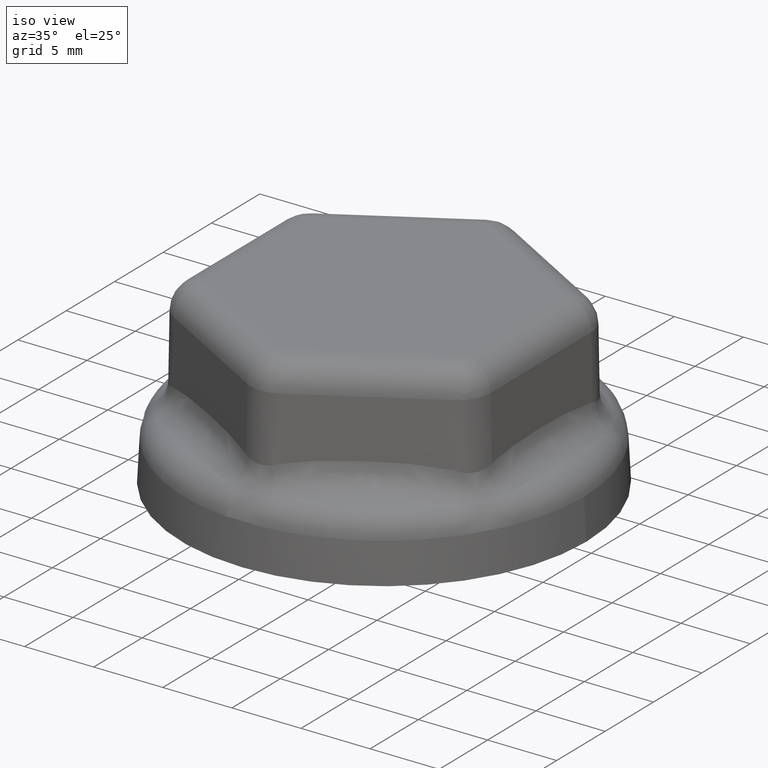
[diagram: clean part render]
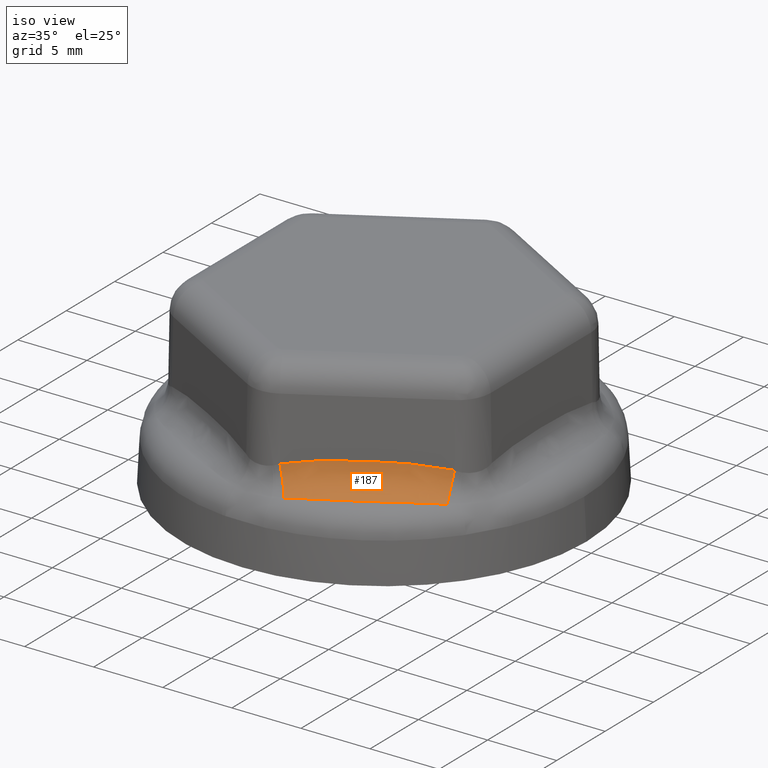
[diagram: same view with one face highlighted and labeled with its STEP entity id]
A machine part, iso view. The second image highlights one B-rep face of the part: STEP entity #187.
In plain terms, the highlighted face is a freeform B-spline surface patch.
Its self-contained STEP definition (entity closure, byte-faithful):
#187 = ADVANCED_FACE( '', ( #434 ), #435, .F. );
#434 = FACE_OUTER_BOUND( '', #4461, .T. );
#435 = ( B_SPLINE_SURFACE( 3, 2, ( ( #4463, #4464, #4465 ), ( #4466, #4467, #4468 ), ( #4469, #4470, #4471 ), ( #4472, #4473, #4474 ), ( #4475, #4476, #4477 ), ( #4478, #4479, #4480 ), ( #4481, #4482, #4483 ), ( #4484, #4485, #4486 ), ( #4487, #4488, #4489 ), ( #4490, #4491, #4492 ), ( #4493, #4494, #4495 ), ( #4496, #4497, #4498 ), ( #4499, #4500, #4501 ), ( #4502, #4503, #4504 ), ( #4505, #4506, #4507 ), ( #4508, #4509, #4510 ), ( #4511, #4512, #4513 ), ( #4514, #4515, #4516 ), ( #4517, #4518, #4519 ), ( #4520, #4521, #4522 ), ( #4523, #4524, #4525 ), ( #4526, #4527, #4528 ), ( #4529, #4530, #4531 ), ( #4532, #4533, #4534 ), ( #4535, #4536, #4537 ), ( #4538, #4539, #4540 ), ( #4541, #4542, #4543 ), ( #4544, #4545, #4546 ), ( #4547, #4548, #4549 ), ( #4550, #4551, #4552 ), ( #4553, #4554, #4555 ), ( #4556, #4557, #4558 ), ( #4559, #4560, #4561 ), ( #4562, #4563, #4564 ), ( #4565, #4566, #4567 ), ( #4568, #4569, #4570 ) ), .UNSPECIFIED., .F., .F., .F. )B_SPLINE_SURFACE_WITH_KNOTS( ( 4, 2, 2, 2, 2, 2, 2, 2, 2, 2, 2, 2, 2, 2, 2, 2, 2, 4 ), ( 3, 3 ), ( 0.000643969489730009, 0.00129502072126301, 0.00194607195279602, 0.00259712318432902, 0.00324817441586203, 0.00389922564739503, 0.00455027687892804, 0.00520132811046104, 0.00585237934199405, 0.00617790495776055, 0.00650343057352705, 0.00715448180506006, 0.00780553303659306, 0.00845658426812607, 0.00910763549965907, 0.00975868673119207, 0.0104097379627251, 0.0110607891942581 ), ( 0.000000000000000, 1.00000000000000 ), .UNSPECIFIED. )RATIONAL_B_SPLINE_SURFACE( ( ( 1.00000000000000, 0.854673566511432, 1.00000000000000 ), ( 1.00000000000000, 0.850109202207065, 1.00000000000000 ), ( 1.00000000000000, 0.845668594856366, 1.00000000000000 ), ( 1.00000000000000, 0.837123622484433, 1.00000000000000 ), ( 1.00000000000000, 0.833019301905955, 1.00000000000000 ), ( 1.00000000000000, 0.825237608346722, 1.00000000000000 ), ( 1.00000000000000, 0.821560373713319, 1.00000000000000 ), ( 1.00000000000000, 0.814722343547653, 1.00000000000000 ), ( 1.00000000000000, 0.811561710087577, 1.00000000000000 ), ( 1.00000000000000, 0.805840478755588, 1.00000000000000 ), ( 1.00000000000000, 0.803280049331529, 1.00000000000000 ), ( 1.00000000000000, 0.798831890886836, 1.00000000000000 ), ( 1.00000000000000, 0.796944315189482, 1.00000000000000 ), ( 1.00000000000000, 0.793898678950325, 1.00000000000000 ), ( 1.00000000000000, 0.792740734359891, 1.00000000000000 ), ( 1.00000000000000, 0.791191196619409, 1.00000000000000 ), ( 1.00000000000000, 0.790799663818531, 1.00000000000000 ), ( 1.00000000000000, 0.790797737678276, 1.00000000000000 ), ( 1.00000000000000, 0.790894475057813, 1.00000000000000 ), ( 1.00000000000000, 0.791282261041673, 1.00000000000000 ), ( 1.00000000000000, 0.791573374682062, 1.00000000000000 ), ( 1.00000000000000, 0.792734285196661, 1.00000000000000 ), ( 1.00000000000000, 0.793892384001266, 1.00000000000000 ), ( 1.00000000000000, 0.796939754686649, 1.00000000000000 ), ( 1.00000000000000, 0.798828910142380, 1.00000000000000 ), ( 1.00000000000000, 0.803280956249931, 1.00000000000000 ), ( 1.00000000000000, 0.805843692375025, 1.00000000000000 ), ( 1.00000000000000, 0.811569434155737, 1.00000000000000 ), ( 1.00000000000000, 0.814732269774553, 1.00000000000000 ), ( 1.00000000000000, 0.821573680413341, 1.00000000000000 ), ( 1.00000000000000, 0.825252091842024, 1.00000000000000 ), ( 1.00000000000000, 0.833034152979602, 1.00000000000000 ), ( 1.00000000000000, 0.837137663365863, 1.00000000000000 ), ( 1.00000000000000, 0.845678065220593, 1.00000000000000 ), ( 1.00000000000000, 0.850114912409576, 1.00000000000000 ), ( 1.00000000000000, 0.854673566222406, 1.00000000000000 ) ) )BOUNDED_SURFACE(  )REPRESENTATION_ITEM( '' )GEOMETRIC_REPRESENTATION_ITEM(  )SURFACE(  ) );
#4461 = EDGE_LOOP( '', ( #5787, #5788, #5789, #5790 ) );
#4463 = CARTESIAN_POINT( '', ( 1.21959955251752, -12.5048011958262, 6.27891681477302 ) );
#4464 = CARTESIAN_POINT( '', ( 1.43429685658261, -12.4048624231615, 5.08733510668828 ) );
#4465 = CARTESIAN_POINT( '', ( 2.07224219008962, -13.2923450870443, 4.55691081382379 ) );
#4466 = CARTESIAN_POINT( '', ( 1.40478599335718, -12.3970290552777, 6.32132233537126 ) );
#4467 = CARTESIAN_POINT( '', ( 1.60625488047751, -12.3052842686722, 5.10212734630727 ) );
#4468 = CARTESIAN_POINT( '', ( 2.25035353519425, -13.2251270710455, 4.57811351678076 ) );
#4469 = CARTESIAN_POINT( '', ( 1.59041785769208, -12.2891116679070, 6.35817506598446 ) );
#4470 = CARTESIAN_POINT( '', ( 1.77927434663386, -12.2051754518254, 5.11284317315828 ) );
#4471 = CARTESIAN_POINT( '', ( 2.43000162735888, -13.1558098792363, 4.59653993969207 ) );
#4472 = CARTESIAN_POINT( '', ( 1.96238869723078, -12.0730474252385, 6.42301030066587 ) );
#4473 = CARTESIAN_POINT( '', ( 2.12735094225277, -12.0039022451070, 5.12827779402936 ) );
#4474 = CARTESIAN_POINT( '', ( 2.79180747055718, -13.0126935696534, 4.62895755650767 ) );
#4475 = CARTESIAN_POINT( '', ( 2.14872893833966, -11.9648999435356, 6.45098762172710 ) );
#4476 = CARTESIAN_POINT( '', ( 2.30240951248457, -11.9027370929799, 5.13299313621681 ) );
#4477 = CARTESIAN_POINT( '', ( 2.97396668695492, -12.9388933556279, 4.64294621752139 ) );
#4478 = CARTESIAN_POINT( '', ( 2.52197740141186, -11.7484203168258, 6.49983445213763 ) );
#4479 = CARTESIAN_POINT( '', ( 2.65446684122182, -11.6993702934865, 5.13827242217248 ) );
#4480 = CARTESIAN_POINT( '', ( 3.34019070205655, -12.7865718783551, 4.66736963228555 ) );
#4481 = CARTESIAN_POINT( '', ( 2.70888584277450, -11.6400881004873, 6.52070121588426 ) );
#4482 = CARTESIAN_POINT( '', ( 2.83146635333247, -11.5971682346054, 5.13883519605766 ) );
#4483 = CARTESIAN_POINT( '', ( 3.52425532790011, -12.7080500635833, 4.67780301456413 ) );
#4484 = CARTESIAN_POINT( '', ( 3.08315706631271, -11.4232759514307, 6.55674904301244 ) );
#4485 = CARTESIAN_POINT( '', ( 3.18726266850002, -11.3917775886783, 5.13742354211282 ) );
#4486 = CARTESIAN_POINT( '', ( 3.89363210937466, -12.5461144219176, 4.69582692775879 ) );
#4487 = CARTESIAN_POINT( '', ( 3.27051995294170, -11.3147959847524, 6.57192879924393 ) );
#4488 = CARTESIAN_POINT( '', ( 3.36605993425422, -11.2885887295554, 5.13544935928786 ) );
#4489 = CARTESIAN_POINT( '', ( 4.07894382644561, -12.4627001418864, 4.70341680620970 ) );
#4490 = CARTESIAN_POINT( '', ( 3.64560905903995, -11.0977179237473, 6.59774150102254 ) );
#4491 = CARTESIAN_POINT( '', ( 3.72524583282945, -11.0813152876247, 5.13035725303384 ) );
#4492 = CARTESIAN_POINT( '', ( 4.45011485942759, -12.2908910582021, 4.71632315679810 ) );
#4493 = CARTESIAN_POINT( '', ( 3.83333531909183, -10.9891198162263, 6.60837393871089 ) );
#4494 = CARTESIAN_POINT( '', ( 3.90563454350859, -10.9772306383322, 5.12724039791064 ) );
#4495 = CARTESIAN_POINT( '', ( 4.63597353691948, -12.2024959451512, 4.72163937590803 ) );
#4496 = CARTESIAN_POINT( '', ( 4.20908080274220, -10.7718283521701, 6.62597261704593 ) );
#4497 = CARTESIAN_POINT( '', ( 4.26772591701862, -10.7683025881345, 5.12101368256861 ) );
#4498 = CARTESIAN_POINT( '', ( 5.00751314707338, -12.0207307634964, 4.73043871484495 ) );
#4499 = CARTESIAN_POINT( '', ( 4.39710003340376, -10.6631349933386, 6.63293876930206 ) );
#4500 = CARTESIAN_POINT( '', ( 4.44942820151963, -10.6634593775505, 5.11790521689839 ) );
#4501 = CARTESIAN_POINT( '', ( 5.19319331072996, -11.9273605670193, 4.73392179116627 ) );
#4502 = CARTESIAN_POINT( '', ( 4.77338112426945, -10.4456693913741, 6.64383476530698 ) );
#4503 = CARTESIAN_POINT( '', ( 4.81380212334838, -10.4531956427764, 5.11256435414336 ) );
#4504 = CARTESIAN_POINT( '', ( 5.56364658092053, -11.7357515668498, 4.73936978901282 ) );
#4505 = CARTESIAN_POINT( '', ( 4.96164297698363, -10.3368971506764, 6.64776470277696 ) );
#4506 = CARTESIAN_POINT( '', ( 4.99647293545686, -10.3477755694529, 5.11033322597860 ) );
#4507 = CARTESIAN_POINT( '', ( 5.74841886377126, -11.6375128384553, 4.74133475786428 ) );
#4508 = CARTESIAN_POINT( '', ( 5.33837908943277, -10.1192836109984, 6.65296647913298 ) );
#4509 = CARTESIAN_POINT( '', ( 5.36239034578293, -10.1365743366022, 5.10729272147480 ) );
#4510 = CARTESIAN_POINT( '', ( 6.11634733718216, -11.4363747541593, 4.74393564596526 ) );
#4511 = CARTESIAN_POINT( '', ( 5.52685333821303, -10.0104423155798, 6.65423845510127 ) );
#4512 = CARTESIAN_POINT( '', ( 5.54563579132433, -10.0307938268459, 5.10648412542013 ) );
#4513 = CARTESIAN_POINT( '', ( 6.29950272671368, -11.3334756771077, 4.74457163398540 ) );
#4514 = CARTESIAN_POINT( '', ( 5.80971667008841, -9.84713096727180, 6.65424478125112 ) );
#4515 = CARTESIAN_POINT( '', ( 5.82062660110518, -9.87202788765456, 5.10648021280580 ) );
#4516 = CARTESIAN_POINT( '', ( 6.57252571434549, -11.1758597907089, 4.74457479706411 ) );
#4517 = CARTESIAN_POINT( '', ( 5.90402993452657, -9.79268556472667, 6.65392793936312 ) );
#4518 = CARTESIAN_POINT( '', ( 5.91231061286167, -9.81909012127695, 5.10667755520855 ) );
#4519 = CARTESIAN_POINT( '', ( 6.66324878918585, -11.1227773408860, 4.74441637610715 ) );
#4520 = CARTESIAN_POINT( '', ( 6.09270815736735, -9.68377795277016, 6.65264734827740 ) );
#4521 = CARTESIAN_POINT( '', ( 6.09566943199994, -9.71321211461552, 5.10745864090077 ) );
#4522 = CARTESIAN_POINT( '', ( 6.84404901737512, -11.0155709067773, 4.74377608058768 ) );
#4523 = CARTESIAN_POINT( '', ( 6.18708052119514, -9.62931147233861, 6.65168337561312 ) );
#4524 = CARTESIAN_POINT( '', ( 6.18735137102978, -9.66026775451248, 5.10804250132340 ) );
#4525 = CARTESIAN_POINT( '', ( 6.93413304697189, -10.9614424746983, 4.74329409422486 ) );
#4526 = CARTESIAN_POINT( '', ( 6.47007521393296, -9.46600295079181, 6.64778662385732 ) );
#4527 = CARTESIAN_POINT( '', ( 6.46211481999737, -9.50158708273839, 5.11032082925851 ) );
#4528 = CARTESIAN_POINT( '', ( 7.20311633335517, -10.7976898703471, 4.74134571840390 ) );
#4529 = CARTESIAN_POINT( '', ( 6.65863888651527, -9.35721487180628, 6.64385674670947 ) );
#4530 = CARTESIAN_POINT( '', ( 6.64497404187928, -9.39596827540235, 5.11255280776315 ) );
#4531 = CARTESIAN_POINT( '', ( 7.38080536134764, -10.6866604187481, 4.73938077971457 ) );
#4532 = CARTESIAN_POINT( '', ( 7.03553915017977, -9.13983111935138, 6.63295562218747 ) );
#4533 = CARTESIAN_POINT( '', ( 7.00967172056332, -9.18530224363645, 5.11789772522692 ) );
#4534 = CARTESIAN_POINT( '', ( 7.73237891737210, -10.4613944946527, 4.73393021760848 ) );
#4535 = CARTESIAN_POINT( '', ( 7.22387573192391, -9.03123545379417, 6.62598424974388 ) );
#4536 = CARTESIAN_POINT( '', ( 7.19150936481211, -9.08025551459372, 5.12100936139240 ) );
#4537 = CARTESIAN_POINT( '', ( 7.90626295357781, -10.3471587042231, 4.73044453119469 ) );
#4538 = CARTESIAN_POINT( '', ( 7.60027480354750, -8.81427635994529, 6.60837051081597 ) );
#4539 = CARTESIAN_POINT( '', ( 7.55382582980510, -8.87094638855173, 5.12724181599020 ) );
#4540 = CARTESIAN_POINT( '', ( 8.24976339244216, -10.1160667430644, 4.72163766195980 ) );
#4541 = CARTESIAN_POINT( '', ( 7.78833729687084, -8.70591292873585, 6.59772819044588 ) );
#4542 = CARTESIAN_POINT( '', ( 7.73430429280321, -8.76668422712578, 5.13036119421279 ) );
#4543 = CARTESIAN_POINT( '', ( 8.41937950962273, -9.99921131170584, 4.71631650151083 ) );
#4544 = CARTESIAN_POINT( '', ( 8.16412250237361, -8.48947396192411, 6.57189275956010 ) );
#4545 = CARTESIAN_POINT( '', ( 8.09363444649737, -8.55912219556418, 5.13545515098812 ) );
#4546 = CARTESIAN_POINT( '', ( 8.75396916495173, -9.76351551150078, 4.70339878636677 ) );
#4547 = CARTESIAN_POINT( '', ( 8.35184524806800, -8.38139839792477, 6.55670009791587 ) );
#4548 = CARTESIAN_POINT( '', ( 8.27248623781174, -8.45582229004457, 5.13742860291083 ) );
#4549 = CARTESIAN_POINT( '', ( 8.91894264633352, -9.64467585986296, 4.69580245521203 ) );
#4550 = CARTESIAN_POINT( '', ( 8.72686611652991, -8.16560705173716, 6.52062767319359 ) );
#4551 = CARTESIAN_POINT( '', ( 8.62836900211855, -8.25032493540122, 5.13883492126202 ) );
#4552 = CARTESIAN_POINT( '', ( 9.24396549748016, -9.40567364796448, 4.67776624321727 ) );
#4553 = CARTESIAN_POINT( '', ( 8.91416433044063, -8.05789119232368, 6.49974913081535 ) );
#4554 = CARTESIAN_POINT( '', ( 8.80540045605872, -8.14812721507520, 5.13826746654624 ) );
#4555 = CARTESIAN_POINT( '', ( 9.40401504420428, -9.28551169990986, 4.66732697162675 ) );
#4556 = CARTESIAN_POINT( '', ( 9.28823039886403, -7.84290884552238, 6.45088878454462 ) );
#4557 = CARTESIAN_POINT( '', ( 9.15751334048372, -7.94494135416749, 5.13297817218631 ) );
#4558 = CARTESIAN_POINT( '', ( 9.71900012364259, -9.04453318895579, 4.64289679892780 ) );
#4559 = CARTESIAN_POINT( '', ( 9.47499844812725, -7.73564219312304, 6.42290958900036 ) );
#4560 = CARTESIAN_POINT( '', ( 9.33259553135818, -7.84395275320888, 5.12825739258215 ) );
#4561 = CARTESIAN_POINT( '', ( 9.87393606413137, -8.92371704865471, 4.62890720067852 ) );
#4562 = CARTESIAN_POINT( '', ( 9.84787348255104, -7.52166900607860, 6.35809736931802 ) );
#4563 = CARTESIAN_POINT( '', ( 9.68072653646447, -7.64327034807092, 5.11282109302081 ) );
#4564 = CARTESIAN_POINT( '', ( 10.1785868824492, -8.68208879547599, 4.59650109135524 ) );
#4565 = CARTESIAN_POINT( '', ( 10.0339815649794, -7.41496173776605, 6.32126931455613 ) );
#4566 = CARTESIAN_POINT( '', ( 9.85377669243993, -7.54357570321695, 5.10210884855019 ) );
#4567 = CARTESIAN_POINT( '', ( 10.3283034301386, -8.56127598199606, 4.57808699876996 ) );
#4568 = CARTESIAN_POINT( '', ( 10.2196757168275, -7.30860479958056, 6.27891681745821 ) );
#4569 = CARTESIAN_POINT( '', ( 10.0257775497125, -7.44456873222661, 5.08733510762495 ) );
#4570 = CARTESIAN_POINT( '', ( 10.4753874168795, -8.44078693057284, 4.55691081516639 ) );
#5787 = ORIENTED_EDGE( '', *, *, #6186, .T. );
#5788 = ORIENTED_EDGE( '', *, *, #6184, .F. );
#5789 = ORIENTED_EDGE( '', *, *, #6187, .T. );
#5790 = ORIENTED_EDGE( '', *, *, #6188, .F. );
#6184 = EDGE_CURVE( '', #6633, #6522, #6672, .T. );
#6186 = EDGE_CURVE( '', #6674, #6522, #6675, .T. );
#6187 = EDGE_CURVE( '', #6633, #6676, #6677, .T. );
#6188 = EDGE_CURVE( '', #6674, #6676, #6678, .T. );
#6522 = VERTEX_POINT( '', #8097 );
#6633 = VERTEX_POINT( '', #8590 );
#6672 = B_SPLINE_CURVE_WITH_KNOTS( '', 3, ( #8770, #8771, #8772, #8773, #8774, #8775, #8776, #8777, #8778, #8779, #8780, #8781, #8782, #8783, #8784, #8785, #8786, #8787, #8788, #8789, #8790, #8791, #8792, #8793, #8794, #8795, #8796, #8797, #8798 ), .UNSPECIFIED., .F., .F., ( 4, 2, 2, 2, 1, 1, 1, 1, 2, 2, 2, 1, 1, 1, 2, 2, 2, 4 ), ( 0.000643969503566443, 0.00129502073421775, 0.00194607196486907, 0.00259712319552038, 0.00324817442617169, 0.00389922565682300, 0.00455027688747431, 0.00520132811812562, 0.00585237934877694, 0.00617790496410260, 0.00650343057942825, 0.00715448181007957, 0.00780553304073089, 0.00845658427138221, 0.00910763550203353, 0.00975868673268484, 0.0104097379633362, 0.0110607891939875 ), .UNSPECIFIED. );
#6674 = VERTEX_POINT( '', #8801 );
#6675 = CIRCLE( '', #8802, 2.00000000000000 );
#6676 = VERTEX_POINT( '', #8803 );
#6677 = CIRCLE( '', #8804, 2.00000000000000 );
#6678 = B_SPLINE_CURVE_WITH_KNOTS( '', 3, ( #8805, #8806, #8807, #8808, #8809, #8810, #8811, #8812, #8813, #8814, #8815, #8816, #8817, #8818, #8819, #8820, #8821, #8822, #8823, #8824, #8825, #8826, #8827, #8828, #8829, #8830, #8831, #8832, #8833, #8834, #8835 ), .UNSPECIFIED., .F., .F., ( 4, 2, 2, 2, 2, 1, 1, 2, 2, 2, 1, 1, 1, 2, 2, 2, 2, 4 ), ( 0.000560050480484382, 0.00116967796041023, 0.00177930544033607, 0.00238893292026192, 0.00299856040018776, 0.00360818788011361, 0.00421781536003945, 0.00482744283996530, 0.00513225657992822, 0.00543707031989114, 0.00604669779981699, 0.00665632527974284, 0.00726595275966868, 0.00787558023959452, 0.00848520771952037, 0.00909483519944622, 0.00970446267937206, 0.0103140901592979 ), .UNSPECIFIED. );
#8097 = CARTESIAN_POINT( '', ( 10.2196757163924, -7.30860479988569, 6.27891681478401 ) );
#8590 = CARTESIAN_POINT( '', ( 1.21959956432464, -12.5048011889549, 6.27891681747587 ) );
#8770 = CARTESIAN_POINT( '', ( 1.21959956432457, -12.5048011889549, 6.27891681747670 ) );
#8771 = CARTESIAN_POINT( '', ( 1.40478684120436, -12.3970285618243, 6.32132253128174 ) );
#8772 = CARTESIAN_POINT( '', ( 1.59041786897024, -12.2891116613365, 6.35817506891618 ) );
#8773 = CARTESIAN_POINT( '', ( 1.96238870815727, -12.0730474189112, 6.42301030160442 ) );
#8774 = CARTESIAN_POINT( '', ( 2.14872894891422, -11.9648999373871, 6.45098762387501 ) );
#8775 = CARTESIAN_POINT( '', ( 2.52197741160180, -11.7484203109311, 6.49983445270715 ) );
#8776 = CARTESIAN_POINT( '', ( 2.70888585263035, -11.6400880947657, 6.52070121743903 ) );
#8777 = CARTESIAN_POINT( '', ( 3.08315707575767, -11.4232759459715, 6.55674904331662 ) );
#8778 = CARTESIAN_POINT( '', ( 3.45788284837786, -11.2063160129511, 6.58710855737024 ) );
#8779 = CARTESIAN_POINT( '', ( 4.02106158030635, -10.8805217062609, 6.61900646437091 ) );
#8780 = CARTESIAN_POINT( '', ( 4.58511927142005, -10.5544416302428, 6.63990492245730 ) );
#8781 = CARTESIAN_POINT( '', ( 5.14990483631990, -10.2281249061457, 6.65169464072775 ) );
#8782 = CARTESIAN_POINT( '', ( 5.52685334436038, -10.0104423120302, 6.65423845512533 ) );
#8783 = CARTESIAN_POINT( '', ( 5.80971667585569, -9.84713096394230, 6.65424478123928 ) );
#8784 = CARTESIAN_POINT( '', ( 5.90402994016938, -9.79268556146986, 6.65392793931065 ) );
#8785 = CARTESIAN_POINT( '', ( 6.09270816275236, -9.68377794966158, 6.65264734825502 ) );
#8786 = CARTESIAN_POINT( '', ( 6.18708052645039, -9.62931146930668, 6.65168337550415 ) );
#8787 = CARTESIAN_POINT( '', ( 6.47007521881309, -9.46600294797414, 6.64778662386332 ) );
#8788 = CARTESIAN_POINT( '', ( 6.84720257284595, -9.24842678235099, 6.63992699519240 ) );
#8789 = CARTESIAN_POINT( '', ( 7.41221231388637, -8.92263978902392, 6.61901283200169 ) );
#8790 = CARTESIAN_POINT( '', ( 7.97639975959458, -8.59754952421825, 6.58708542229692 ) );
#8791 = CARTESIAN_POINT( '', ( 8.35184525033764, -8.38139839662852, 6.55670009721489 ) );
#8792 = CARTESIAN_POINT( '', ( 8.72686611836353, -8.16560705067235, 6.52062767349989 ) );
#8793 = CARTESIAN_POINT( '', ( 8.91416433193541, -8.05789119147687, 6.49974913001149 ) );
#8794 = CARTESIAN_POINT( '', ( 9.28823039994233, -7.84290884489039, 6.45088878501239 ) );
#8795 = CARTESIAN_POINT( '', ( 9.47499844884809, -7.73564219272488, 6.42290958810621 ) );
#8796 = CARTESIAN_POINT( '', ( 9.84787348288016, -7.52166900587424, 6.35809737002966 ) );
#8797 = CARTESIAN_POINT( '', ( 10.0339808510707, -7.41496214661985, 6.32126947935299 ) );
#8798 = CARTESIAN_POINT( '', ( 10.2196757165960, -7.30860479971318, 6.27891681751102 ) );
#8801 = CARTESIAN_POINT( '', ( 10.4753874165155, -8.44078693087103, 4.55691081521880 ) );
#8802 = AXIS2_PLACEMENT_3D( '', #9278, #9279, #9280 );
#8803 = CARTESIAN_POINT( '', ( 2.07224220144229, -13.2923450827603, 4.55691081517535 ) );
#8804 = AXIS2_PLACEMENT_3D( '', #9281, #9282, #9283 );
#8805 = CARTESIAN_POINT( '', ( 10.4753874165155, -8.44078693087103, 4.55691081521879 ) );
#8806 = CARTESIAN_POINT( '', ( 10.3185958018540, -8.56922832817721, 4.57948463947444 ) );
#8807 = CARTESIAN_POINT( '', ( 10.1607215849039, -8.69647253282618, 4.59865803346428 ) );
#8808 = CARTESIAN_POINT( '', ( 9.84268950081382, -8.94824965849893, 4.63193128840547 ) );
#8809 = CARTESIAN_POINT( '', ( 9.68253144640044, -9.07278292041027, 4.64602437329507 ) );
#8810 = CARTESIAN_POINT( '', ( 9.35981969256427, -9.31887398252719, 4.67036983402056 ) );
#8811 = CARTESIAN_POINT( '', ( 9.19726589782711, -9.44043198073300, 4.68061848443929 ) );
#8812 = CARTESIAN_POINT( '', ( 8.86966179639750, -9.68035221468313, 4.69818634546030 ) );
#8813 = CARTESIAN_POINT( '', ( 8.70461144204651, -9.79871457720855, 4.70550337962919 ) );
#8814 = CARTESIAN_POINT( '', ( 8.37192648038654, -10.0320624715211, 4.71788139862569 ) );
#8815 = CARTESIAN_POINT( '', ( 8.03665723085776, -10.2620336499371, 4.72800152589108 ) );
#8816 = CARTESIAN_POINT( '', ( 7.52577964118112, -10.5964253944718, 4.73786714201859 ) );
#8817 = CARTESIAN_POINT( '', ( 7.17976060449000, -10.8120881746370, 4.74155788440070 ) );
#8818 = CARTESIAN_POINT( '', ( 6.91817534091907, -10.9710523664767, 4.74338458960923 ) );
#8819 = CARTESIAN_POINT( '', ( 6.83060510979077, -11.0235943395734, 4.74383555875278 ) );
#8820 = CARTESIAN_POINT( '', ( 6.65503014059988, -11.1275920213250, 4.74443205388922 ) );
#8821 = CARTESIAN_POINT( '', ( 6.56700298090094, -11.1790618239731, 4.74457784106482 ) );
#8822 = CARTESIAN_POINT( '', ( 6.30220395812652, -11.3318880679594, 4.74456530005104 ) );
#8823 = CARTESIAN_POINT( '', ( 5.94722390935393, -11.5314328055134, 4.74335679031237 ) );
#8824 = CARTESIAN_POINT( '', ( 5.40907843592596, -11.8182081342268, 4.73779560584676 ) );
#8825 = CARTESIAN_POINT( '', ( 4.86538617033155, -12.0926579927395, 4.72791860082023 ) );
#8826 = CARTESIAN_POINT( '', ( 4.49935345689425, -12.2676104145672, 4.71779993219801 ) );
#8827 = CARTESIAN_POINT( '', ( 4.13162020078561, -12.4386870977220, 4.70542634652848 ) );
#8828 = CARTESIAN_POINT( '', ( 3.94690322355986, -12.5222875416450, 4.69811342428377 ) );
#8829 = CARTESIAN_POINT( '', ( 3.57587721136052, -12.6857746494811, 4.68055705031809 ) );
#8830 = CARTESIAN_POINT( '', ( 3.38956805537208, -12.7656612837201, 4.67031580293257 ) );
#8831 = CARTESIAN_POINT( '', ( 3.01549257618052, -12.9219142697048, 4.64598698673061 ) );
#8832 = CARTESIAN_POINT( '', ( 2.82772605671072, -12.9982805937999, 4.63190318972141 ) );
#8833 = CARTESIAN_POINT( '', ( 2.45090175252535, -13.1477188667951, 4.59864692246589 ) );
#8834 = CARTESIAN_POINT( '', ( 2.26184362171796, -13.2207907892971, 4.57948131816549 ) );
#8835 = CARTESIAN_POINT( '', ( 2.07224220144229, -13.2923450827603, 4.55691081517535 ) );
#9278 = CARTESIAN_POINT( '', ( 11.2195234115244, -9.04039180768527, 6.31382163043760 ) );
#9279 = DIRECTION( '', ( 0.851236391937314, 0.487548452030892, -0.194147139983634 ) );
#9280 = DIRECTION( '', ( -0.497005259561275, 0.867747527780074, 1.07773312487477E-017 ) );
#9281 = CARTESIAN_POINT( '', ( 2.21944724767248, -14.2365882037001, 6.31382162786035 ) );
#9282 = DIRECTION( '', ( -0.847847543848605, -0.493418107489037, -0.194147144176334 ) );
#9283 = DIRECTION( '', ( 0.502988767107646, -0.864292948116280, -1.07773314814893E-017 ) );